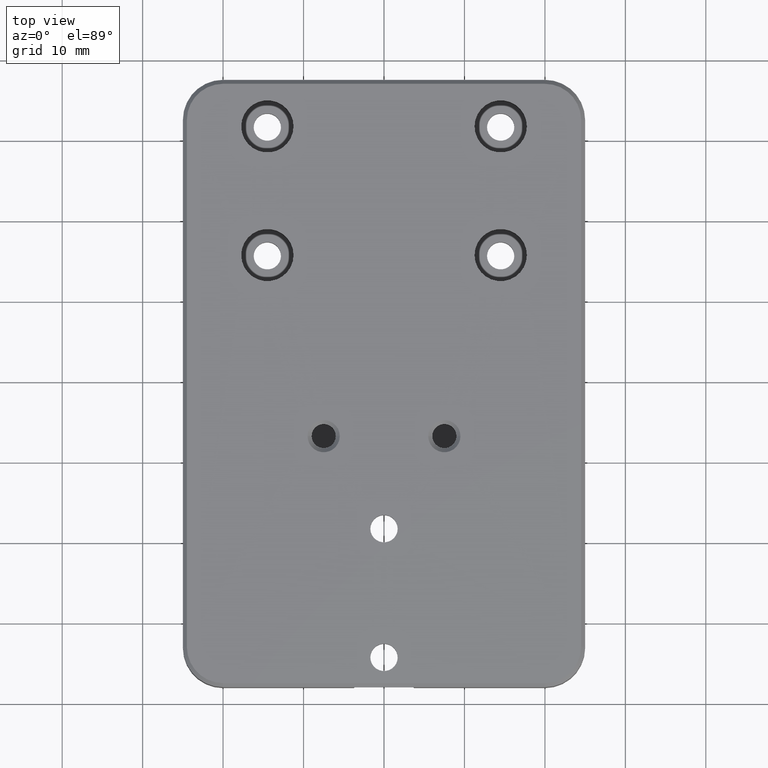
[diagram: clean part render]
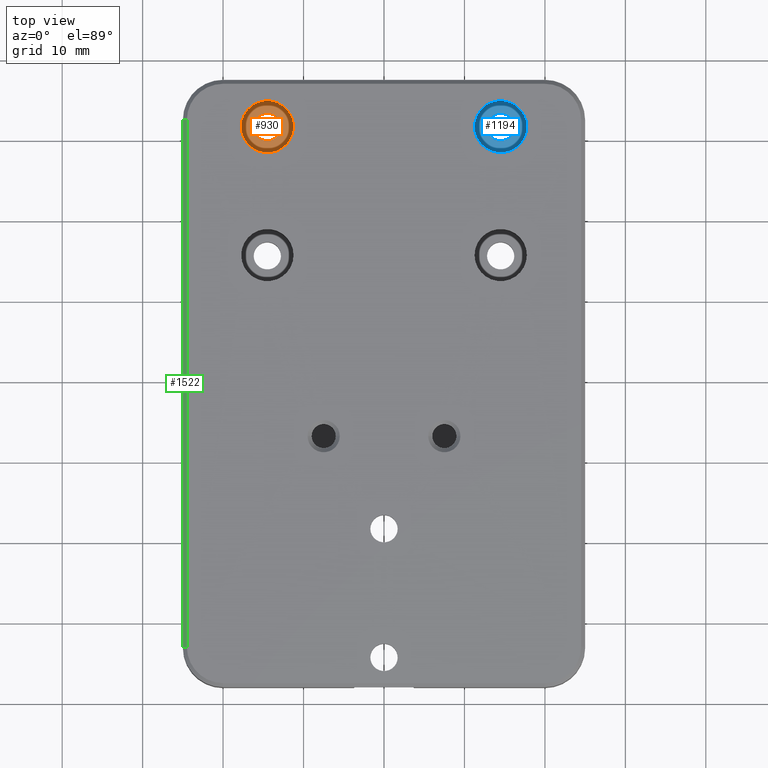
[diagram: same view with three faces highlighted in distinct colors, each labeled with its STEP entity id]
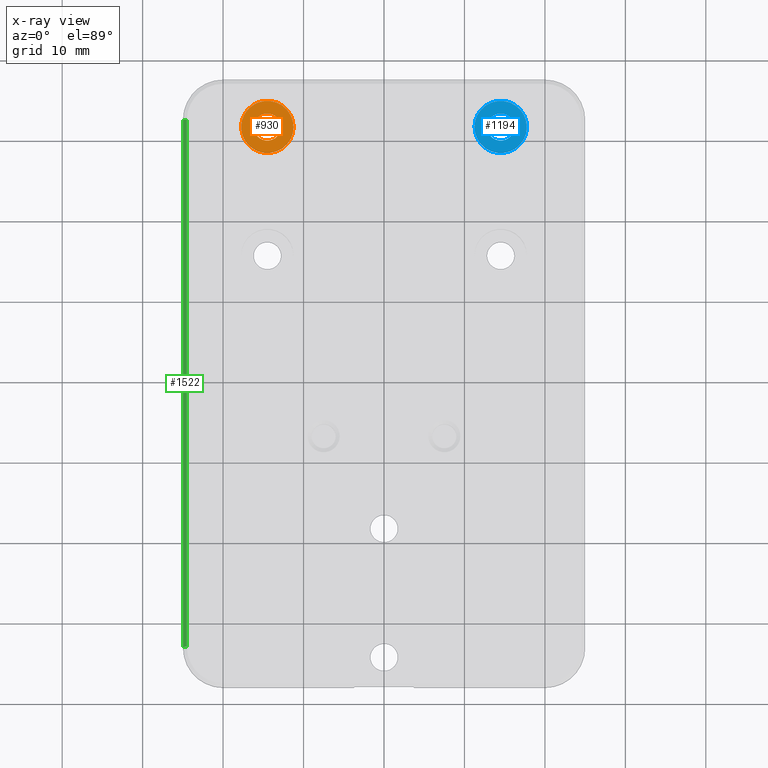
[diagram: x-ray of the same camera — body ghosted, the three highlighted faces saturated]
A machine part, top view with three faces highlighted in distinct colors.
The next image is the same camera in x-ray (body ghosted, the three faces saturated) — at least one of them is partly hidden behind the body in this view.
Their STEP definitions:

[orange] entity #930 — the highlighted planar face has unit normal (0, 0, -1).
#23 = CARTESIAN_POINT ( 'NONE',  ( -14.49999999999999822, 21.70000000000000639, 3.700000000000000178 ) ) ;
#42 = DIRECTION ( 'NONE',  ( 1.000000000000000000, 0.0000000000000000000, 0.0000000000000000000 ) ) ;
#67 = FACE_BOUND ( 'NONE', #1030, .T. ) ;
#92 = EDGE_LOOP ( 'NONE', ( #965, #456 ) ) ;
#203 = DIRECTION ( 'NONE',  ( 1.000000000000000000, 0.0000000000000000000, 0.0000000000000000000 ) ) ;
#220 = CIRCLE ( 'NONE', #407, 1.699999999999998401 ) ;
#235 = CARTESIAN_POINT ( 'NONE',  ( -14.49999999999999822, 21.70000000000000639, 3.700000000000000178 ) ) ;
#237 = DIRECTION ( 'NONE',  ( -0.0000000000000000000, -0.0000000000000000000, 1.000000000000000000 ) ) ;
#318 = VERTEX_POINT ( 'NONE', #977 ) ;
#362 = DIRECTION ( 'NONE',  ( -0.0000000000000000000, -0.0000000000000000000, 1.000000000000000000 ) ) ;
#366 = AXIS2_PLACEMENT_3D ( 'NONE', #1949, #237, #588 ) ;
#392 = DIRECTION ( 'NONE',  ( -0.0000000000000000000, -0.0000000000000000000, 1.000000000000000000 ) ) ;
#407 = AXIS2_PLACEMENT_3D ( 'NONE', #2317, #1742, #42 ) ;
#456 = ORIENTED_EDGE ( 'NONE', *, *, #747, .T. ) ;
#497 = AXIS2_PLACEMENT_3D ( 'NONE', #23, #392, #203 ) ;
#588 = DIRECTION ( 'NONE',  ( 1.000000000000000000, 0.0000000000000000000, 0.0000000000000000000 ) ) ;
#747 = EDGE_CURVE ( 'NONE', #318, #1715, #1766, .T. ) ;
#813 = DIRECTION ( 'NONE',  ( 0.0000000000000000000, 0.0000000000000000000, -1.000000000000000000 ) ) ;
#925 = CIRCLE ( 'NONE', #1002, 3.249999999999999556 ) ;
#930 = ADVANCED_FACE ( 'NONE', ( #67, #1971 ), #1990, .F. ) ;
#965 = ORIENTED_EDGE ( 'NONE', *, *, #1144, .T. ) ;
#977 = CARTESIAN_POINT ( 'NONE',  ( -17.75000000000000000, 21.70000000000000639, 3.700000000000000178 ) ) ;
#1002 = AXIS2_PLACEMENT_3D ( 'NONE', #235, #362, #1753 ) ;
#1030 = EDGE_LOOP ( 'NONE', ( #1269, #1157 ) ) ;
#1144 = EDGE_CURVE ( 'NONE', #1715, #318, #925, .T. ) ;
#1157 = ORIENTED_EDGE ( 'NONE', *, *, #1982, .F. ) ;
#1172 = CARTESIAN_POINT ( 'NONE',  ( -11.25000000000000000, 21.70000000000000639, 3.700000000000000178 ) ) ;
#1262 = EDGE_CURVE ( 'NONE', #1318, #2130, #220, .T. ) ;
#1269 = ORIENTED_EDGE ( 'NONE', *, *, #1262, .F. ) ;
#1318 = VERTEX_POINT ( 'NONE', #2365 ) ;
#1418 = CIRCLE ( 'NONE', #497, 1.699999999999998401 ) ;
#1422 = CARTESIAN_POINT ( 'NONE',  ( -12.80000000000000071, 21.70000000000000639, 3.700000000000000178 ) ) ;
#1582 = DIRECTION ( 'NONE',  ( -1.000000000000000000, 0.0000000000000000000, -0.0000000000000000000 ) ) ;
#1715 = VERTEX_POINT ( 'NONE', #1172 ) ;
#1742 = DIRECTION ( 'NONE',  ( -0.0000000000000000000, -0.0000000000000000000, 1.000000000000000000 ) ) ;
#1753 = DIRECTION ( 'NONE',  ( 1.000000000000000000, 0.0000000000000000000, 0.0000000000000000000 ) ) ;
#1766 = CIRCLE ( 'NONE', #366, 3.249999999999999556 ) ;
#1949 = CARTESIAN_POINT ( 'NONE',  ( -14.49999999999999822, 21.70000000000000639, 3.700000000000000178 ) ) ;
#1963 = CARTESIAN_POINT ( 'NONE',  ( -16.19999999999999929, 21.70000000000000639, 3.700000000000000178 ) ) ;
#1971 = FACE_OUTER_BOUND ( 'NONE', #92, .T. ) ;
#1982 = EDGE_CURVE ( 'NONE', #2130, #1318, #1418, .T. ) ;
#1990 = PLANE ( 'NONE',  #2182 ) ;
#2130 = VERTEX_POINT ( 'NONE', #1963 ) ;
#2182 = AXIS2_PLACEMENT_3D ( 'NONE', #1422, #813, #1582 ) ;
#2317 = CARTESIAN_POINT ( 'NONE',  ( -14.49999999999999822, 21.70000000000000639, 3.700000000000000178 ) ) ;
#2365 = CARTESIAN_POINT ( 'NONE',  ( -12.80000000000000071, 21.70000000000000639, 3.700000000000000178 ) ) ;

[blue] entity #1194 — the highlighted planar face has unit normal (0, 0, -1).
#26 = CIRCLE ( 'NONE', #1410, 3.249999999999999556 ) ;
#180 = AXIS2_PLACEMENT_3D ( 'NONE', #1316, #583, #2280 ) ;
#328 = CARTESIAN_POINT ( 'NONE',  ( 14.50000000000000178, 21.70000000000000995, 3.700000000000000178 ) ) ;
#384 = EDGE_CURVE ( 'NONE', #1170, #1341, #1393, .T. ) ;
#583 = DIRECTION ( 'NONE',  ( 0.0000000000000000000, 0.0000000000000000000, -1.000000000000000000 ) ) ;
#623 = EDGE_CURVE ( 'NONE', #1554, #1819, #26, .T. ) ;
#769 = CARTESIAN_POINT ( 'NONE',  ( 17.75000000000000355, 21.70000000000000995, 3.700000000000000178 ) ) ;
#970 = DIRECTION ( 'NONE',  ( -0.0000000000000000000, -0.0000000000000000000, 1.000000000000000000 ) ) ;
#1019 = EDGE_LOOP ( 'NONE', ( #2183, #1322 ) ) ;
#1120 = ORIENTED_EDGE ( 'NONE', *, *, #1258, .T. ) ;
#1137 = FACE_BOUND ( 'NONE', #1019, .T. ) ;
#1170 = VERTEX_POINT ( 'NONE', #2128 ) ;
#1194 = ADVANCED_FACE ( 'NONE', ( #1137, #1504 ), #1342, .F. ) ;
#1235 = CARTESIAN_POINT ( 'NONE',  ( 14.50000000000000178, 21.70000000000000995, 3.700000000000000178 ) ) ;
#1243 = CARTESIAN_POINT ( 'NONE',  ( 14.50000000000000178, 21.70000000000000995, 3.700000000000000178 ) ) ;
#1258 = EDGE_CURVE ( 'NONE', #1819, #1554, #1530, .T. ) ;
#1295 = AXIS2_PLACEMENT_3D ( 'NONE', #1725, #970, #1542 ) ;
#1316 = CARTESIAN_POINT ( 'NONE',  ( 16.20000000000000284, 21.70000000000000995, 3.700000000000000178 ) ) ;
#1322 = ORIENTED_EDGE ( 'NONE', *, *, #2334, .F. ) ;
#1341 = VERTEX_POINT ( 'NONE', #2165 ) ;
#1342 = PLANE ( 'NONE',  #180 ) ;
#1393 = CIRCLE ( 'NONE', #1711, 1.700000000000000178 ) ;
#1410 = AXIS2_PLACEMENT_3D ( 'NONE', #1243, #2354, #1779 ) ;
#1502 = EDGE_LOOP ( 'NONE', ( #1831, #1120 ) ) ;
#1504 = FACE_OUTER_BOUND ( 'NONE', #1502, .T. ) ;
#1505 = DIRECTION ( 'NONE',  ( -0.0000000000000000000, -0.0000000000000000000, 1.000000000000000000 ) ) ;
#1530 = CIRCLE ( 'NONE', #1295, 3.249999999999999556 ) ;
#1542 = DIRECTION ( 'NONE',  ( 1.000000000000000000, 0.0000000000000000000, 0.0000000000000000000 ) ) ;
#1554 = VERTEX_POINT ( 'NONE', #769 ) ;
#1569 = DIRECTION ( 'NONE',  ( -0.0000000000000000000, -0.0000000000000000000, 1.000000000000000000 ) ) ;
#1639 = CARTESIAN_POINT ( 'NONE',  ( 11.25000000000000355, 21.70000000000000995, 3.700000000000000178 ) ) ;
#1711 = AXIS2_PLACEMENT_3D ( 'NONE', #1235, #1569, #2345 ) ;
#1725 = CARTESIAN_POINT ( 'NONE',  ( 14.50000000000000178, 21.70000000000000995, 3.700000000000000178 ) ) ;
#1739 = CIRCLE ( 'NONE', #2070, 1.700000000000000178 ) ;
#1779 = DIRECTION ( 'NONE',  ( 1.000000000000000000, 0.0000000000000000000, 0.0000000000000000000 ) ) ;
#1819 = VERTEX_POINT ( 'NONE', #1639 ) ;
#1831 = ORIENTED_EDGE ( 'NONE', *, *, #623, .T. ) ;
#2070 = AXIS2_PLACEMENT_3D ( 'NONE', #328, #1505, #2255 ) ;
#2128 = CARTESIAN_POINT ( 'NONE',  ( 16.20000000000000284, 21.70000000000000995, 3.700000000000000178 ) ) ;
#2165 = CARTESIAN_POINT ( 'NONE',  ( 12.80000000000000249, 21.70000000000000995, 3.700000000000000178 ) ) ;
#2183 = ORIENTED_EDGE ( 'NONE', *, *, #384, .F. ) ;
#2255 = DIRECTION ( 'NONE',  ( 1.000000000000000000, 0.0000000000000000000, 0.0000000000000000000 ) ) ;
#2280 = DIRECTION ( 'NONE',  ( -1.000000000000000000, 0.0000000000000000000, -0.0000000000000000000 ) ) ;
#2334 = EDGE_CURVE ( 'NONE', #1341, #1170, #1739, .T. ) ;
#2345 = DIRECTION ( 'NONE',  ( 1.000000000000000000, 0.0000000000000000000, 0.0000000000000000000 ) ) ;
#2354 = DIRECTION ( 'NONE',  ( -0.0000000000000000000, -0.0000000000000000000, 1.000000000000000000 ) ) ;

[green] entity #1522 — the highlighted planar face has unit normal (-0.7071, -0, 0.7071).
#118 = EDGE_CURVE ( 'NONE', #550, #1359, #1484, .T. ) ;
#119 = LINE ( 'NONE', #1285, #826 ) ;
#205 = EDGE_CURVE ( 'NONE', #1780, #2430, #119, .T. ) ;
#327 = CARTESIAN_POINT ( 'NONE',  ( -24.49999999999999289, 22.50000000000000711, 8.000000000000000000 ) ) ;
#333 = DIRECTION ( 'NONE',  ( -1.838117590439000914E-16, 1.000000000000000000, 0.0000000000000000000 ) ) ;
#388 = LINE ( 'NONE', #1150, #1493 ) ;
#550 = VERTEX_POINT ( 'NONE', #692 ) ;
#597 = CARTESIAN_POINT ( 'NONE',  ( -24.49999999999998224, -42.99999999999998579, 8.000000000000000000 ) ) ;
#639 = EDGE_LOOP ( 'NONE', ( #1940, #2382, #2270, #1506 ) ) ;
#648 = VECTOR ( 'NONE', #1087, 1000.000000000000114 ) ;
#692 = CARTESIAN_POINT ( 'NONE',  ( -24.99999999999999289, -42.99999999999998579, 7.499999999999985789 ) ) ;
#826 = VECTOR ( 'NONE', #867, 1000.000000000000000 ) ;
#867 = DIRECTION ( 'NONE',  ( 1.838117590439000914E-16, -1.000000000000000000, 0.0000000000000000000 ) ) ;
#872 = FACE_OUTER_BOUND ( 'NONE', #639, .T. ) ;
#1087 = DIRECTION ( 'NONE',  ( -0.7071067811865474617, 0.0000000000000000000, -0.7071067811865474617 ) ) ;
#1105 = EDGE_CURVE ( 'NONE', #1780, #1359, #2234, .T. ) ;
#1150 = CARTESIAN_POINT ( 'NONE',  ( -24.49999999999998224, -42.99999999999998579, 8.000000000000000000 ) ) ;
#1197 = CARTESIAN_POINT ( 'NONE',  ( -24.49999999999999289, 22.50000000000000711, 8.000000000000000000 ) ) ;
#1237 = EDGE_CURVE ( 'NONE', #2430, #550, #388, .T. ) ;
#1274 = VECTOR ( 'NONE', #333, 1000.000000000000000 ) ;
#1285 = CARTESIAN_POINT ( 'NONE',  ( -24.49999999999998224, -42.99999999999998579, 8.000000000000000000 ) ) ;
#1359 = VERTEX_POINT ( 'NONE', #2012 ) ;
#1484 = LINE ( 'NONE', #1496, #1274 ) ;
#1493 = VECTOR ( 'NONE', #1919, 1000.000000000000114 ) ;
#1496 = CARTESIAN_POINT ( 'NONE',  ( -25.00000000000000711, 22.50000000000000711, 7.499999999999985789 ) ) ;
#1506 = ORIENTED_EDGE ( 'NONE', *, *, #205, .F. ) ;
#1522 = ADVANCED_FACE ( 'NONE', ( #872 ), #2419, .T. ) ;
#1723 = DIRECTION ( 'NONE',  ( -0.7071067811865487940, -1.299745412817696874E-16, 0.7071067811865463515 ) ) ;
#1740 = CARTESIAN_POINT ( 'NONE',  ( -24.49999999999998934, -4.503388096575550416E-15, 8.000000000000000000 ) ) ;
#1780 = VERTEX_POINT ( 'NONE', #1197 ) ;
#1881 = DIRECTION ( 'NONE',  ( -1.838117590439000914E-16, 1.000000000000000000, 0.0000000000000000000 ) ) ;
#1919 = DIRECTION ( 'NONE',  ( -0.7071067811865451302, 0.0000000000000000000, -0.7071067811865500152 ) ) ;
#1936 = AXIS2_PLACEMENT_3D ( 'NONE', #1740, #1723, #1881 ) ;
#1940 = ORIENTED_EDGE ( 'NONE', *, *, #1105, .T. ) ;
#2012 = CARTESIAN_POINT ( 'NONE',  ( -25.00000000000000711, 22.50000000000000711, 7.499999999999985789 ) ) ;
#2234 = LINE ( 'NONE', #327, #648 ) ;
#2270 = ORIENTED_EDGE ( 'NONE', *, *, #1237, .F. ) ;
#2382 = ORIENTED_EDGE ( 'NONE', *, *, #118, .F. ) ;
#2419 = PLANE ( 'NONE',  #1936 ) ;
#2430 = VERTEX_POINT ( 'NONE', #597 ) ;